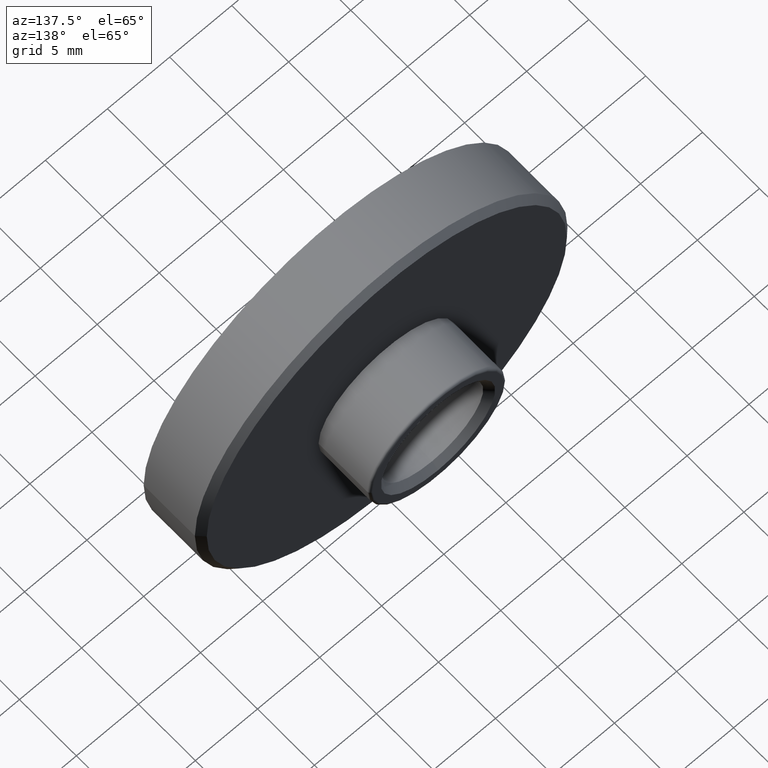
[diagram: clean part render]
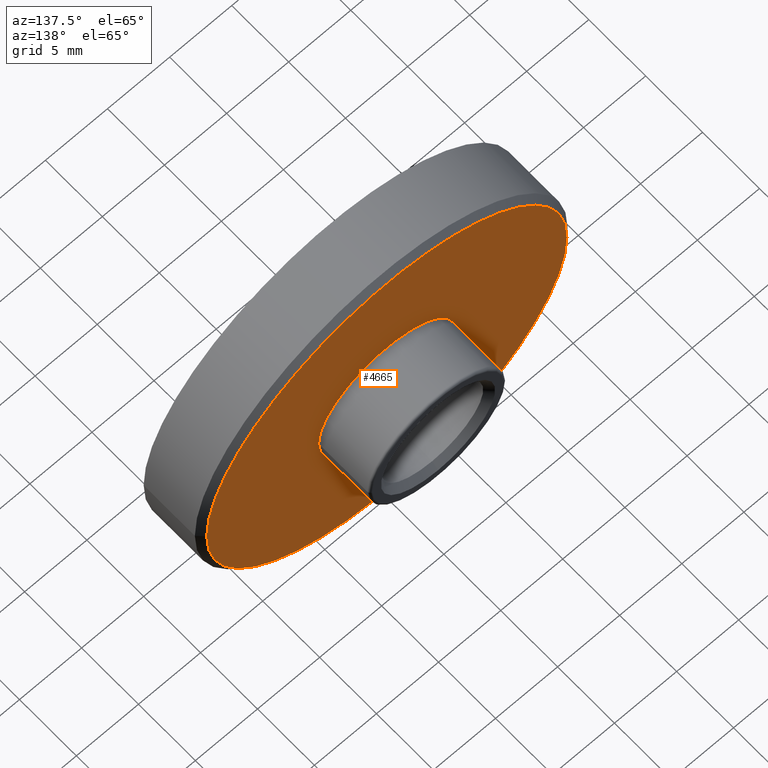
[diagram: same view with one face highlighted and labeled with its STEP entity id]
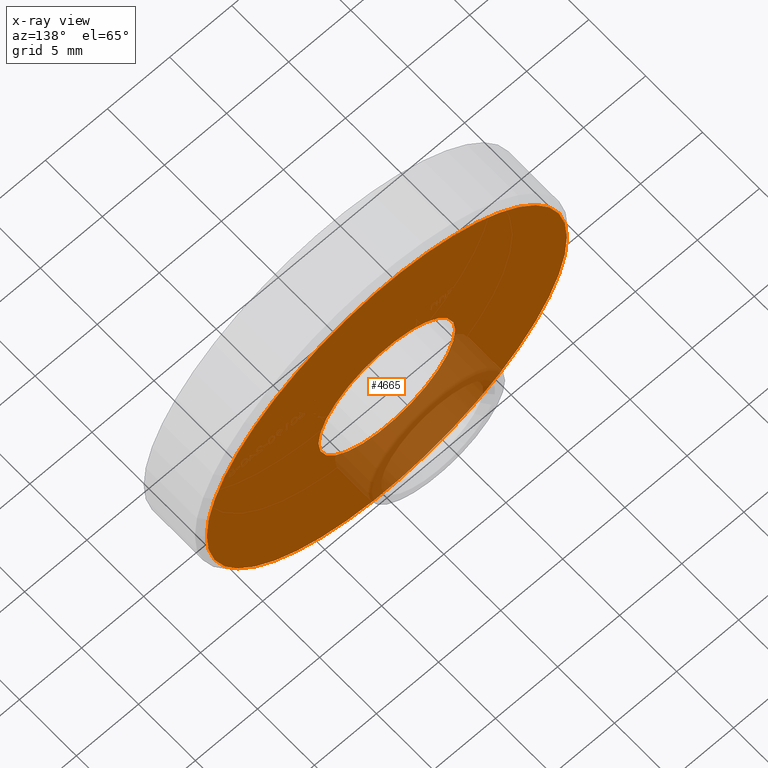
[diagram: x-ray of the same camera — body ghosted, the highlighted face saturated]
A machine part, auxiliary view. The second image highlights one B-rep face of the part: STEP entity #4665.
The next image is the same camera in x-ray: the body ghosted, the highlighted face saturated — about 19% of this face is hidden behind the body in this view.
In plain terms, the highlighted planar face has unit normal (-0, 1, 0).
Its self-contained STEP definition (entity closure, byte-faithful):
#354 = ORIENTED_EDGE ( 'NONE', *, *, #531, .T. ) ;
#451 = ORIENTED_EDGE ( 'NONE', *, *, #7016, .T. ) ;
#482 = DIRECTION ( 'NONE',  ( -1.000000000000000000, -1.884071998688235002E-16, 0.000000000000000000 ) ) ;
#531 = EDGE_CURVE ( 'NONE', #11081, #10930, #3981, .T. ) ;
#634 = DIRECTION ( 'NONE',  ( -1.884071998688235002E-16, 1.000000000000000000, 0.000000000000000000 ) ) ;
#971 = DIRECTION ( 'NONE',  ( -1.884071998688235002E-16, 1.000000000000000000, 0.000000000000000000 ) ) ;
#1378 = CARTESIAN_POINT ( 'NONE',  ( -5.499999999999998224, 4.999999999999996447, 6.735557395310439065E-16 ) ) ;
#1851 = CARTESIAN_POINT ( 'NONE',  ( 5.499999999999996447, 4.999999999999998224, 0.000000000000000000 ) ) ;
#2040 = CARTESIAN_POINT ( 'NONE',  ( -14.50000000000000000, 4.999999999999994671, 1.806354028742345802E-15 ) ) ;
#2160 = FACE_OUTER_BOUND ( 'NONE', #4570, .T. ) ;
#2633 = AXIS2_PLACEMENT_3D ( 'NONE', #12317, #4580, #6791 ) ;
#3158 = VERTEX_POINT ( 'NONE', #3476 ) ;
#3476 = CARTESIAN_POINT ( 'NONE',  ( 14.49999999999999645, 5.000000000000000000, 0.000000000000000000 ) ) ;
#3802 = CIRCLE ( 'NONE', #12604, 14.49999999999999822 ) ;
#3981 = CIRCLE ( 'NONE', #7704, 5.499999999999997335 ) ;
#4049 = ORIENTED_EDGE ( 'NONE', *, *, #9341, .T. ) ;
#4184 = EDGE_LOOP ( 'NONE', ( #451, #354 ) ) ;
#4277 = ORIENTED_EDGE ( 'NONE', *, *, #8699, .T. ) ;
#4370 = FACE_BOUND ( 'NONE', #4184, .T. ) ;
#4570 = EDGE_LOOP ( 'NONE', ( #4049, #4277 ) ) ;
#4580 = DIRECTION ( 'NONE',  ( 1.884071998688235002E-16, -1.000000000000000000, -0.000000000000000000 ) ) ;
#4665 = ADVANCED_FACE ( 'NONE', ( #2160, #4370 ), #10413, .T. ) ;
#5507 = CIRCLE ( 'NONE', #9459, 14.49999999999999822 ) ;
#6067 = CARTESIAN_POINT ( 'NONE',  ( 15.00000000000000000, 5.000000000000000000, 0.000000000000000000 ) ) ;
#6147 = DIRECTION ( 'NONE',  ( 1.000000000000000000, 1.577021341797098053E-16, 0.000000000000000000 ) ) ;
#6791 = DIRECTION ( 'NONE',  ( 1.000000000000000000, 1.577021341797098053E-16, 0.000000000000000000 ) ) ;
#7016 = EDGE_CURVE ( 'NONE', #10930, #11081, #7726, .T. ) ;
#7704 = AXIS2_PLACEMENT_3D ( 'NONE', #10540, #9402, #6147 ) ;
#7726 = CIRCLE ( 'NONE', #2633, 5.499999999999997335 ) ;
#8524 = CARTESIAN_POINT ( 'NONE',  ( -1.111602479226058136E-15, 4.999999999999997335, 0.000000000000000000 ) ) ;
#8699 = EDGE_CURVE ( 'NONE', #12048, #3158, #5507, .T. ) ;
#9341 = EDGE_CURVE ( 'NONE', #3158, #12048, #3802, .T. ) ;
#9402 = DIRECTION ( 'NONE',  ( 1.884071998688235002E-16, -1.000000000000000000, -0.000000000000000000 ) ) ;
#9459 = AXIS2_PLACEMENT_3D ( 'NONE', #11855, #971, #9615 ) ;
#9615 = DIRECTION ( 'NONE',  ( -1.000000000000000000, -1.794541526872559352E-16, 0.000000000000000000 ) ) ;
#9836 = DIRECTION ( 'NONE',  ( -1.884071998688235002E-16, 1.000000000000000000, 0.000000000000000000 ) ) ;
#10413 = PLANE ( 'NONE',  #12957 ) ;
#10540 = CARTESIAN_POINT ( 'NONE',  ( -1.111602479226058136E-15, 4.999999999999997335, 0.000000000000000000 ) ) ;
#10739 = DIRECTION ( 'NONE',  ( -1.000000000000000000, -1.794541526872559352E-16, 0.000000000000000000 ) ) ;
#10930 = VERTEX_POINT ( 'NONE', #1851 ) ;
#11081 = VERTEX_POINT ( 'NONE', #1378 ) ;
#11855 = CARTESIAN_POINT ( 'NONE',  ( -1.111602479226058136E-15, 4.999999999999997335, 0.000000000000000000 ) ) ;
#12048 = VERTEX_POINT ( 'NONE', #2040 ) ;
#12317 = CARTESIAN_POINT ( 'NONE',  ( -1.111602479226058136E-15, 4.999999999999997335, 0.000000000000000000 ) ) ;
#12604 = AXIS2_PLACEMENT_3D ( 'NONE', #8524, #9836, #10739 ) ;
#12957 = AXIS2_PLACEMENT_3D ( 'NONE', #6067, #634, #482 ) ;